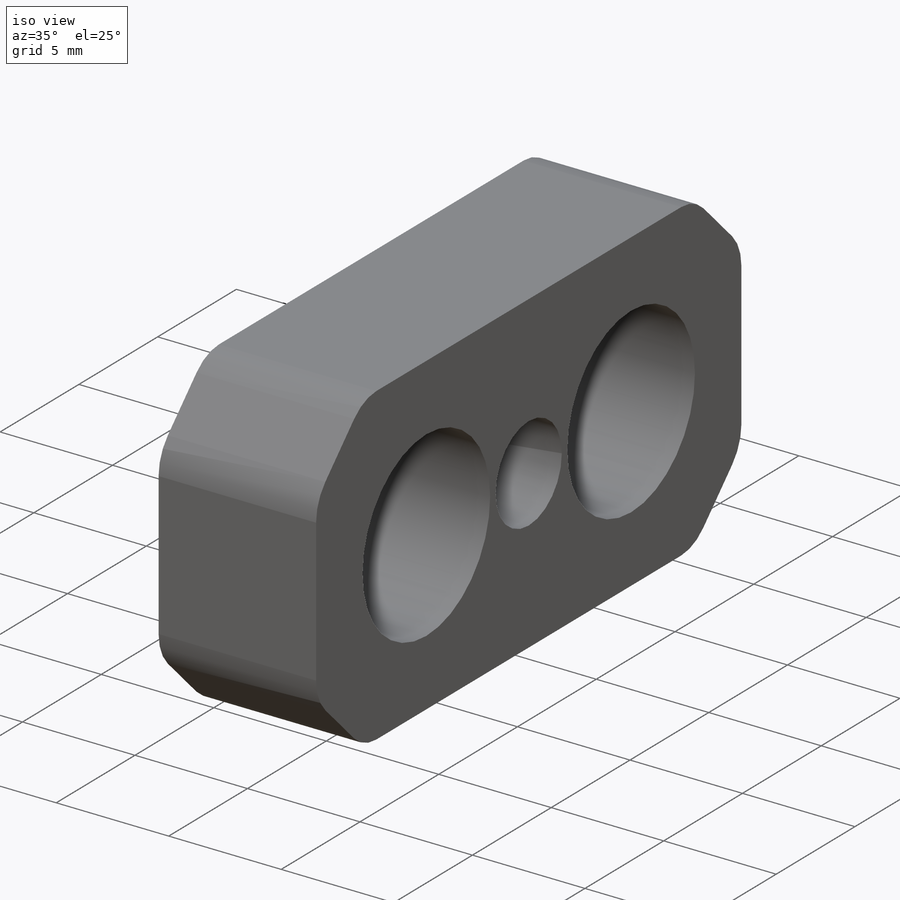
[diagram: iso view]
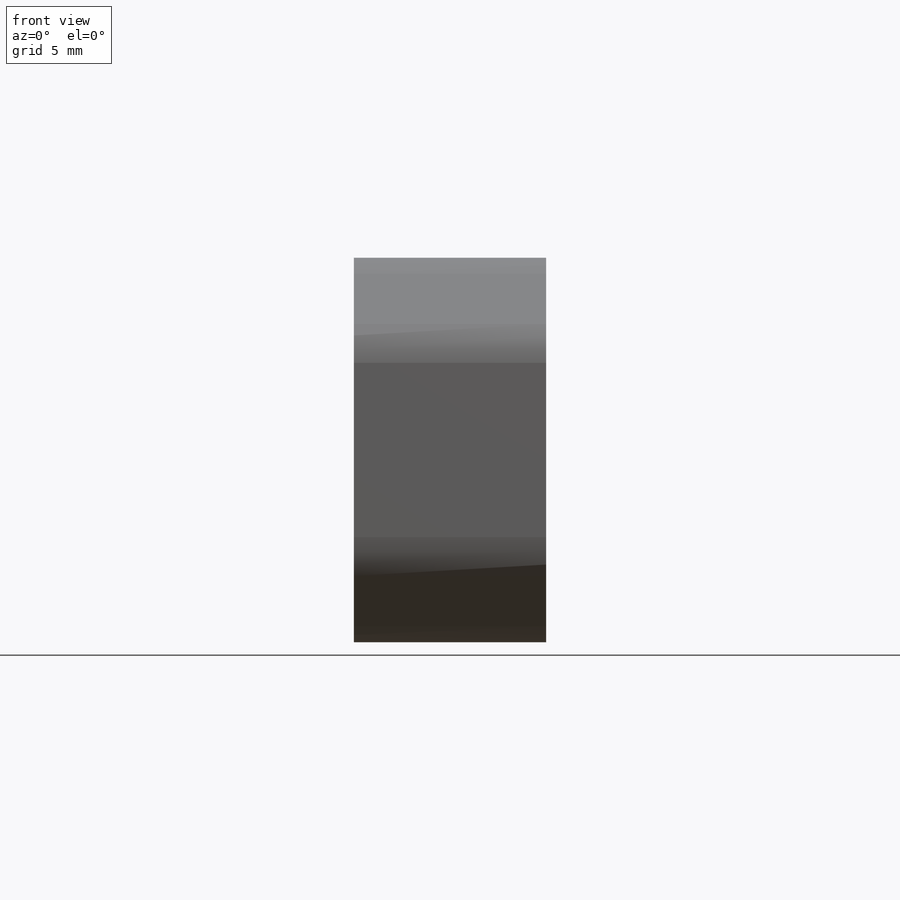
[diagram: front view]
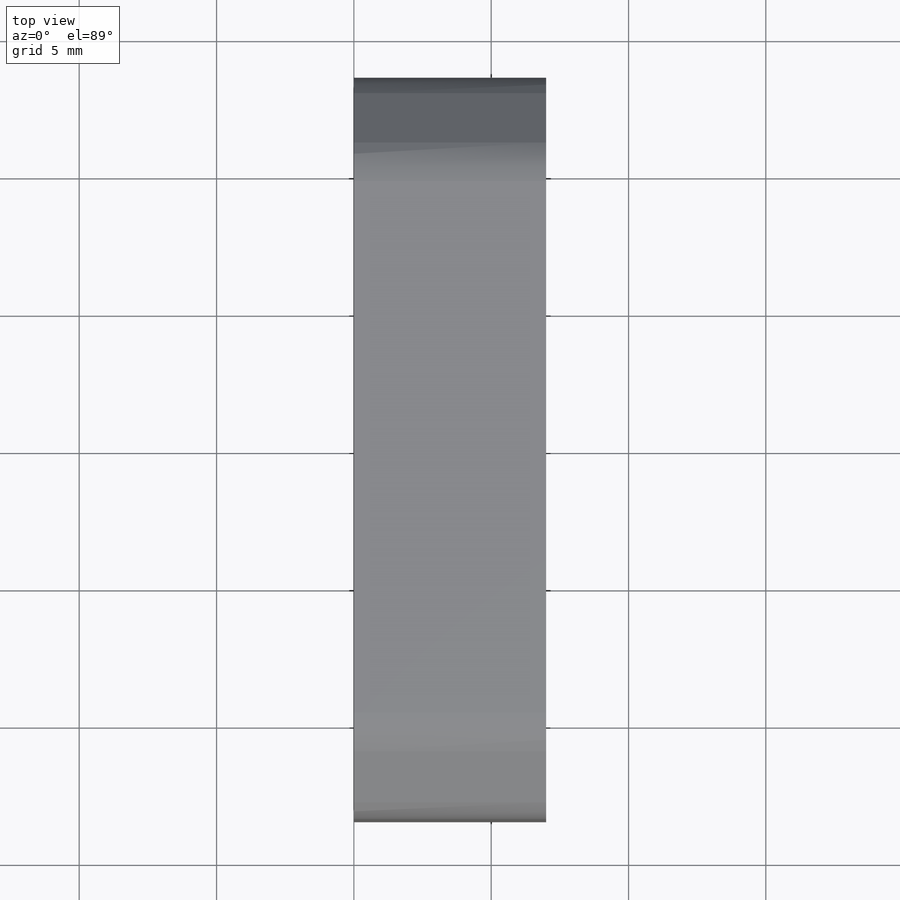
[diagram: top view]
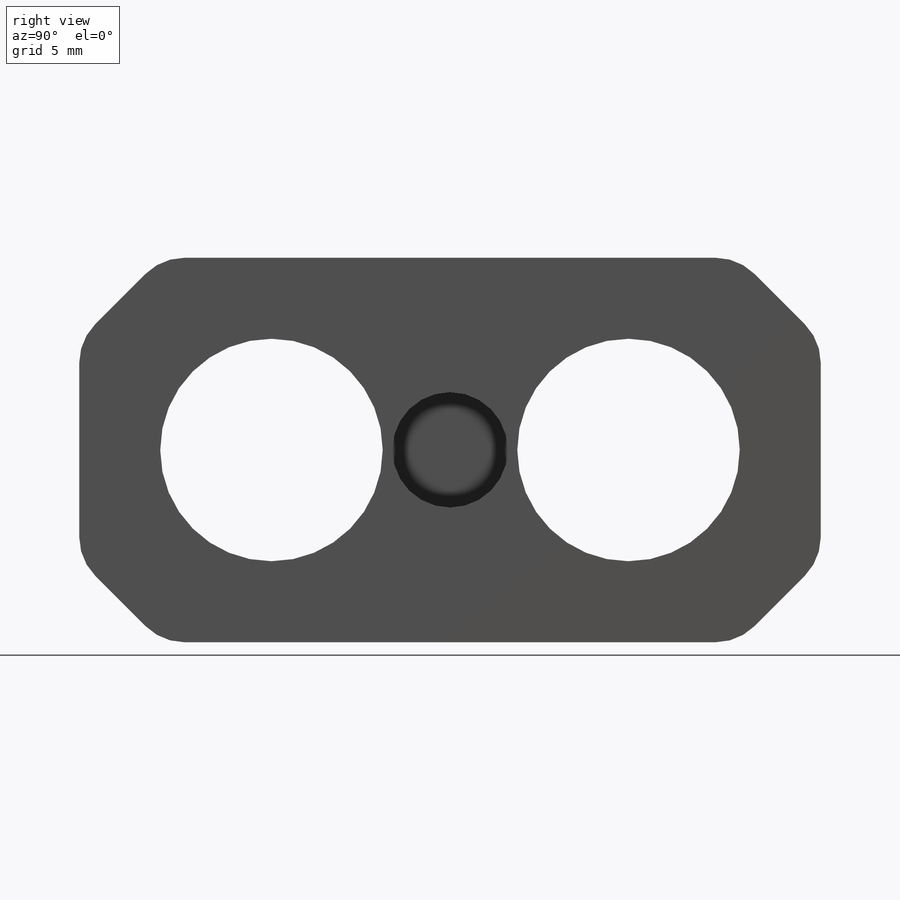
[diagram: right view]
SOLIDWORKS PART (.sldprt)
format: sldprt  version: not decoded by parser v0  size: 217,600 bytes
history: native  units: mm
features: sketch x3, fillet x2, cut_extrude x2, material x1, extrude x1, chamfer x1 (+12 scaffold rows collapsed)
feature tree (22):
  scaffold x12  (default folders/planes/origin — collapsed)
  material  "POM Acetal Copolymer"
  sketch  "Sketch1"  dims[c1.D1=8.1mm c1.D2=8.0mm c1.D3=8.0mm c1.D4=8.0mm c2.D2=13.0mm c2.D3=7.0mm c2.D4=7.0mm]
  extrude  "Boss-Extrude1"  Depth=7mm
  fillet  "Fillet1"  Radius=7mm
  sketch  "Sketch2"  dims[D1=2.0mm]
  cut_extrude  "Cut-Extrude1"  Depth=4.5mm
  sketch  "Sketch3"  dims[D1=4.2mm]
  cut_extrude  "Cut-Extrude4"  Depth=5mm
  chamfer  "Chanfrein1"  Distance=3mm Angle=45deg
  fillet  "Congé1"  Radius=2mm
decode coverage: 9 of 9 modeling features carry decoded parameters
note: suppression state not decoded; provenance and decode notes live in map.json
